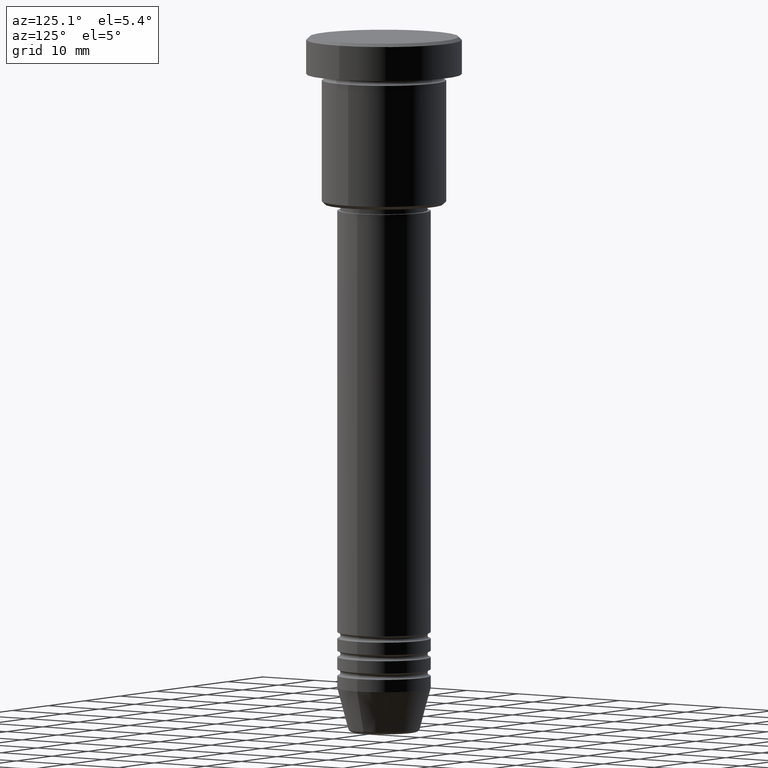
[diagram: clean part render]
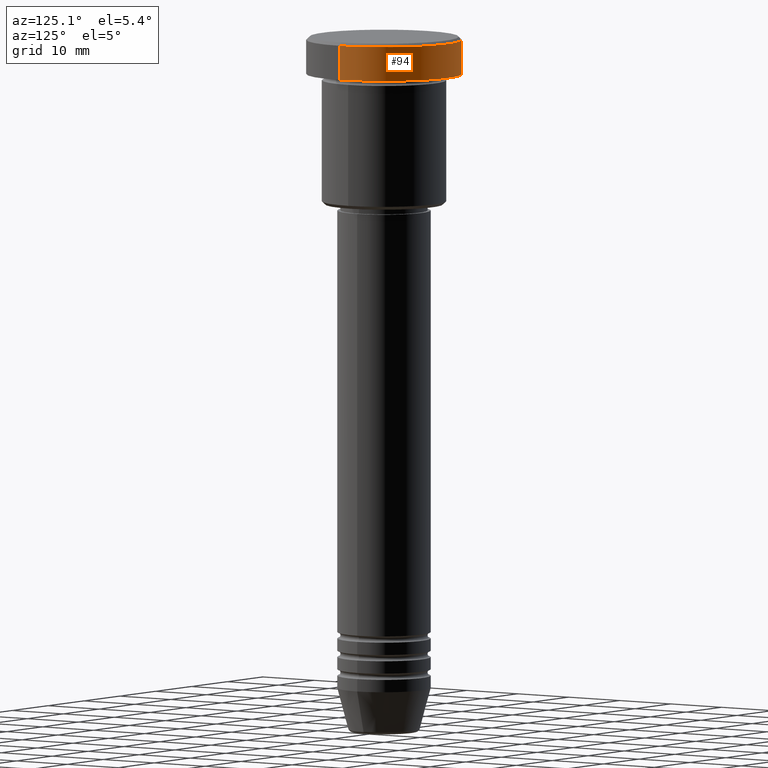
[diagram: same view with one face highlighted and labeled with its STEP entity id]
A machine part, auxiliary view. The second image highlights one B-rep face of the part: STEP entity #94.
In plain terms, the highlighted cylindrical surface (partial cylindrical patch) has radius 12.5 mm, axis along (-0, -0, 1).
Its self-contained STEP definition (entity closure, byte-faithful):
#94 = ADVANCED_FACE ( 'NONE', ( #532 ), #544, .T. ) ;
#98 = VERTEX_POINT ( 'NONE', #1096 ) ;
#103 = VECTOR ( 'NONE', #152, 1000.000000000000000 ) ;
#152 = DIRECTION ( 'NONE',  ( -0.000000000000000000, -0.000000000000000000, 1.000000000000000000 ) ) ;
#164 = DIRECTION ( 'NONE',  ( 1.000000000000000000, 0.000000000000000000, 0.000000000000000000 ) ) ;
#248 = DIRECTION ( 'NONE',  ( 1.000000000000000000, 0.000000000000000000, 0.000000000000000000 ) ) ;
#255 = VERTEX_POINT ( 'NONE', #1169 ) ;
#265 = ORIENTED_EDGE ( 'NONE', *, *, #975, .F. ) ;
#269 = CIRCLE ( 'NONE', #416, 12.50000000000000000 ) ;
#310 = EDGE_CURVE ( 'NONE', #642, #98, #586, .T. ) ;
#313 = EDGE_CURVE ( 'NONE', #98, #255, #269, .T. ) ;
#346 = DIRECTION ( 'NONE',  ( 1.000000000000000000, 0.000000000000000000, 0.000000000000000000 ) ) ;
#416 = AXIS2_PLACEMENT_3D ( 'NONE', #1148, #1158, #248 ) ;
#463 = CIRCLE ( 'NONE', #1028, 12.50000000000000000 ) ;
#480 = ORIENTED_EDGE ( 'NONE', *, *, #313, .T. ) ;
#528 = CARTESIAN_POINT ( 'NONE',  ( 12.50000000000000000, 0.000000000000000000, -5.999999999999996447 ) ) ;
#530 = EDGE_LOOP ( 'NONE', ( #1161, #991, #480, #265 ) ) ;
#532 = FACE_OUTER_BOUND ( 'NONE', #530, .T. ) ;
#544 = CYLINDRICAL_SURFACE ( 'NONE', #708, 12.50000000000000000 ) ;
#585 = CARTESIAN_POINT ( 'NONE',  ( 12.50000000000000000, 0.000000000000000000, 0.000000000000000000 ) ) ;
#586 = LINE ( 'NONE', #591, #103 ) ;
#591 = CARTESIAN_POINT ( 'NONE',  ( -12.50000000000000000, 1.530808498934191521E-15, 0.000000000000000000 ) ) ;
#617 = CARTESIAN_POINT ( 'NONE',  ( 0.000000000000000000, 0.000000000000000000, -5.999999999999996447 ) ) ;
#642 = VERTEX_POINT ( 'NONE', #680 ) ;
#680 = CARTESIAN_POINT ( 'NONE',  ( -12.50000000000000000, 1.530808498934191521E-15, -5.999999999999996447 ) ) ;
#708 = AXIS2_PLACEMENT_3D ( 'NONE', #1016, #1182, #346 ) ;
#887 = VECTOR ( 'NONE', #1063, 1000.000000000000000 ) ;
#975 = EDGE_CURVE ( 'NONE', #1051, #255, #1052, .T. ) ;
#980 = DIRECTION ( 'NONE',  ( -0.000000000000000000, -0.000000000000000000, 1.000000000000000000 ) ) ;
#991 = ORIENTED_EDGE ( 'NONE', *, *, #310, .T. ) ;
#1016 = CARTESIAN_POINT ( 'NONE',  ( 0.000000000000000000, 0.000000000000000000, 0.000000000000000000 ) ) ;
#1028 = AXIS2_PLACEMENT_3D ( 'NONE', #617, #980, #164 ) ;
#1047 = EDGE_CURVE ( 'NONE', #1051, #642, #463, .T. ) ;
#1051 = VERTEX_POINT ( 'NONE', #528 ) ;
#1052 = LINE ( 'NONE', #585, #887 ) ;
#1063 = DIRECTION ( 'NONE',  ( -0.000000000000000000, -0.000000000000000000, 1.000000000000000000 ) ) ;
#1096 = CARTESIAN_POINT ( 'NONE',  ( -12.50000000000000000, 1.530808498934191521E-15, -0.5000000000000056621 ) ) ;
#1148 = CARTESIAN_POINT ( 'NONE',  ( 0.000000000000000000, 0.000000000000000000, -0.5000000000000056621 ) ) ;
#1158 = DIRECTION ( 'NONE',  ( 0.000000000000000000, 0.000000000000000000, -1.000000000000000000 ) ) ;
#1161 = ORIENTED_EDGE ( 'NONE', *, *, #1047, .T. ) ;
#1169 = CARTESIAN_POINT ( 'NONE',  ( 12.50000000000000000, 0.000000000000000000, -0.5000000000000056621 ) ) ;
#1182 = DIRECTION ( 'NONE',  ( -0.000000000000000000, -0.000000000000000000, 1.000000000000000000 ) ) ;